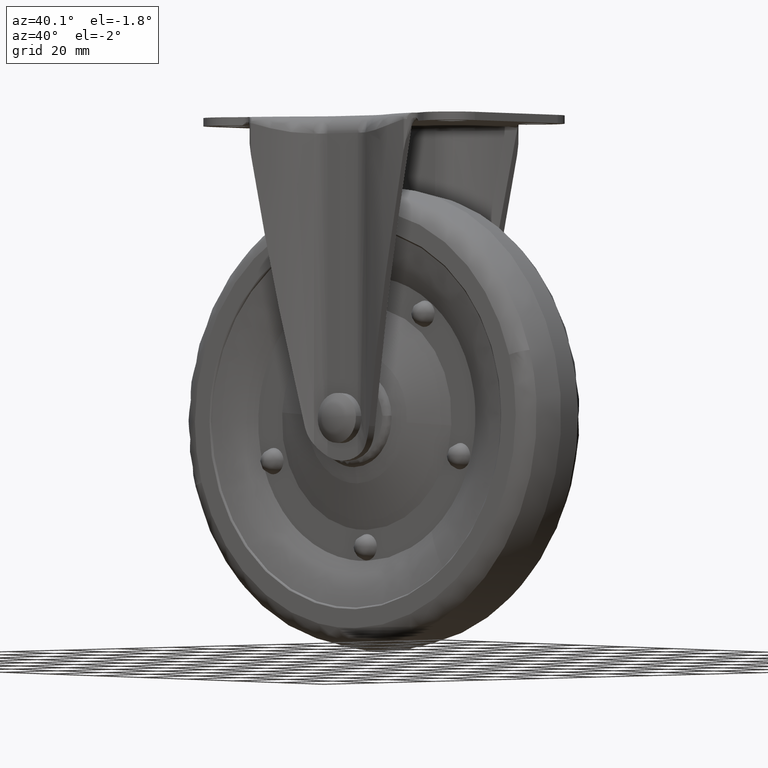
[diagram: clean part render]
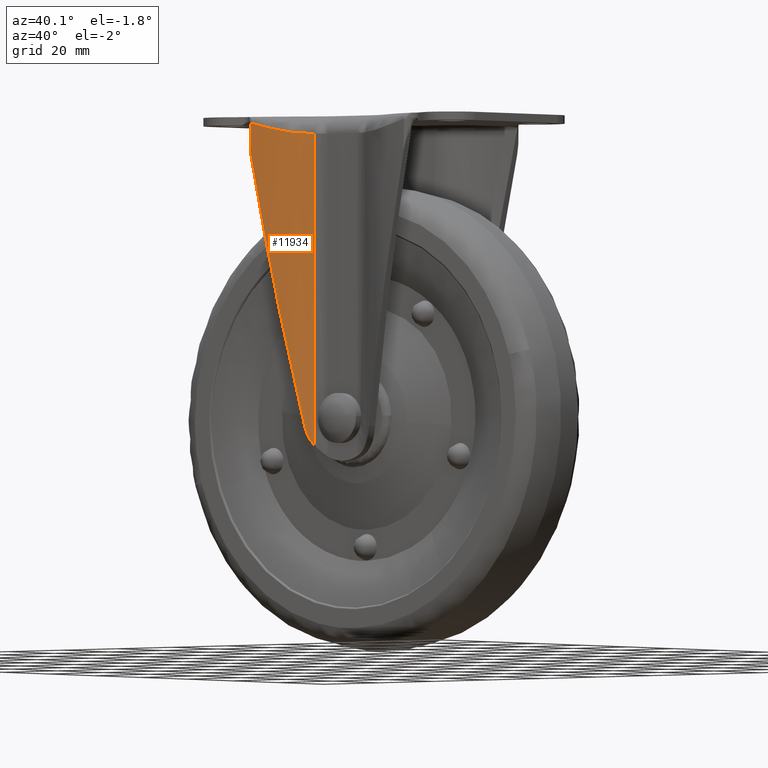
[diagram: same view with one face highlighted and labeled with its STEP entity id]
A machine part, auxiliary view. The second image highlights one B-rep face of the part: STEP entity #11934.
In plain terms, the highlighted face is a freeform B-spline surface patch.
Its self-contained STEP definition (entity closure, byte-faithful):
#10577=CARTESIAN_POINT('',(-27.999450214678951,-24.736656125469999,-1.771033933932410));
#10578=VERTEX_POINT('',#10577);
#10590=CARTESIAN_POINT('',(-27.999450214678951,-24.736656125469999,-10.670306205590780));
#10591=VERTEX_POINT('',#10590);
#10605=CARTESIAN_POINT('',(-27.999450214678951,-24.736656125469999,-1.771033933932410));
#10606=CARTESIAN_POINT('',(-27.999450214678951,-24.736656125469999,-10.670306205590780));
#10607=QUASI_UNIFORM_CURVE('',1,(#10605,#10606),.UNSPECIFIED.,.F.,.U.);
#10608=EDGE_CURVE('',#10578,#10591,#10607,.T.);
#11256=CARTESIAN_POINT('',(-9.524197729783939,-19.208080686845101,-5.0));
#11257=VERTEX_POINT('',#11256);
#11341=CARTESIAN_POINT('',(-9.524197729783939,-19.208080686845101,-5.0));
#11342=CARTESIAN_POINT('',(-9.721285463953905,-19.331011021970891,-4.998767386554441));
#11343=CARTESIAN_POINT('',(-10.119274963873130,-19.579250633673059,-4.996278306192044));
#11344=CARTESIAN_POINT('',(-10.731031096696681,-19.940041906206972,-4.976562624434939));
#11345=CARTESIAN_POINT('',(-11.360897201986511,-20.295906816748811,-4.945227550175589));
#11346=CARTESIAN_POINT('',(-12.009695676551351,-20.644917654763841,-4.901060756505101));
#11347=CARTESIAN_POINT('',(-12.677351338126799,-20.986506508058010,-4.844396815677010));
#11348=CARTESIAN_POINT('',(-13.364003099582289,-21.319701018436518,-4.775143726917881));
#11349=CARTESIAN_POINT('',(-14.069695236447870,-21.643611317848588,-4.693327155719762));
#11350=CARTESIAN_POINT('',(-14.794460056920560,-21.957296432348809,-4.598939786859484));
#11351=CARTESIAN_POINT('',(-15.538293172596219,-22.259802001055011,-4.491985285539370));
#11352=CARTESIAN_POINT('',(-16.301156329938649,-22.550150326605930,-4.372456842156297));
#11353=CARTESIAN_POINT('',(-17.082980311098261,-22.827345926868730,-4.240378936713592));
#11354=CARTESIAN_POINT('',(-17.883638303762801,-23.090368387209459,-4.095658385878757));
#11355=CARTESIAN_POINT('',(-18.771296419279739,-23.358846147992981,-3.925573693732037));
#11356=CARTESIAN_POINT('',(-19.781409418037430,-23.634771080448001,-3.718287109231695));
#11357=CARTESIAN_POINT('',(-20.950597531586752,-23.914470005173008,-3.463955389271223));
#11358=CARTESIAN_POINT('',(-22.246494170215101,-24.176556137892138,-3.169955638447405));
#11359=CARTESIAN_POINT('',(-23.669937936947409,-24.408062274208270,-2.836148743047471));
#11360=CARTESIAN_POINT('',(-25.220906958558899,-24.592633464694980,-2.462402372359446));
#11361=CARTESIAN_POINT('',(-26.678868650620160,-24.704616790617290,-2.103409792956150));
#11362=CARTESIAN_POINT('',(-27.618912595346899,-24.729445097052960,-1.867021104141086));
#11363=CARTESIAN_POINT('',(-27.999450214678951,-24.736656125469999,-1.771033933932410));
#11364=B_SPLINE_CURVE_WITH_KNOTS('',3,(#11341,#11342,#11343,#11344,#11345,#11346,#11347,#11348,#11349,#11350,#11351,#11352,#11353,#11354,#11355,#11356,#11357,#11358,#11359,#11360,#11361,#11362,#11363),.UNSPECIFIED.,.F.,.U.,(4,1,1,1,1,1,1,1,1,1,1,1,1,1,1,1,1,1,1,1,4),(0.0,0.033951579014938,0.068560187220836,0.103836063426484,0.139788876276249,0.176427758421585,0.213761338946602,0.251797774047220,0.290544775986236,0.330009640364105,0.370199271758334,0.411120207793648,0.452778641711366,0.495180443510462,0.548927820384288,0.608787964001157,0.674768910222634,0.746876592849080,0.825115495451964,0.909489067496334,0.966864934376159),.UNSPECIFIED.);
#11365=EDGE_CURVE('',#11257,#10578,#11364,.T.);
#11712=CARTESIAN_POINT('',(-11.739877332031099,-20.498421401754150,-87.485009431393294));
#11713=VERTEX_POINT('',#11712);
#11719=CARTESIAN_POINT('',(-11.739877332031149,-20.498421401754150,-87.485009431393038));
#11720=CARTESIAN_POINT('',(-19.358727554844535,-24.577695580032803,-51.491461322154855));
#11721=CARTESIAN_POINT('',(-27.999450214682000,-24.736656125469999,-10.670306205576340));
#11729=(BOUNDED_CURVE()B_SPLINE_CURVE(2,(#11719,#11720,#11721),.UNSPECIFIED.,.F.,.U.)CURVE()GEOMETRIC_REPRESENTATION_ITEM()QUASI_UNIFORM_CURVE()RATIONAL_B_SPLINE_CURVE((1.0,0.972142328570976,1.0))REPRESENTATION_ITEM(''));
#11730=EDGE_CURVE('',#11713,#10591,#11729,.T.);
#11846=CARTESIAN_POINT('',(-9.524197711336511,-19.208080716065702,-92.299974891219506));
#11847=VERTEX_POINT('',#11846);
#11863=CARTESIAN_POINT('',(-11.739877332031099,-20.498421401754150,-87.485009431393294));
#11864=CARTESIAN_POINT('',(-11.644602426320009,-20.447409444393269,-87.935114342505344));
#11865=CARTESIAN_POINT('',(-11.524929694272689,-20.382809867583951,-88.373165251978506));
#11866=CARTESIAN_POINT('',(-11.240117032884660,-20.226133300475190,-89.226347654144377));
#11867=CARTESIAN_POINT('',(-11.074960389033450,-20.134050471349109,-89.641471622574571));
#11868=CARTESIAN_POINT('',(-10.794321633796720,-19.973835440230761,-90.247104757555107));
#11869=CARTESIAN_POINT('',(-10.695279759262579,-19.916736264339178,-90.446133330903507));
#11870=CARTESIAN_POINT('',(-10.538528985288639,-19.825248080630740,-90.740360306729713));
#11871=CARTESIAN_POINT('',(-10.484849193115931,-19.793739958616332,-90.837827966377930));
#11872=CARTESIAN_POINT('',(-10.375079936667429,-19.728904726635861,-91.030755643079530));
#11873=CARTESIAN_POINT('',(-10.319052227319499,-19.695614525066141,-91.126115631327195));
#11874=CARTESIAN_POINT('',(-10.033336886164969,-19.524747901584291,-91.597466473274210));
#11875=CARTESIAN_POINT('',(-9.786959022899220,-19.373966093799599,-91.957153147814765));
#11876=CARTESIAN_POINT('',(-9.524197729783950,-19.208080686845101,-92.299974867151306));
#11877=B_SPLINE_CURVE_WITH_KNOTS('',3,(#11863,#11864,#11865,#11866,#11867,#11868,#11869,#11870,#11871,#11872,#11873,#11874,#11875,#11876),.UNSPECIFIED.,.F.,.U.,(4,2,2,2,2,2,4),(0.0,0.249999999999997,0.499999999999994,0.624999999999993,0.687499999999992,0.749999999999991,1.0),.UNSPECIFIED.);
#11878=EDGE_CURVE('',#11713,#11847,#11877,.T.);
#11909=CARTESIAN_POINT('',(-8.737358039505558,-18.696810579891160,-94.563198415151689));
#11910=CARTESIAN_POINT('',(-8.737358039505558,-18.696810579891160,0.548770178098081));
#11911=CARTESIAN_POINT('',(-17.918920997322292,-24.835182873618820,-94.563198415151689));
#11912=CARTESIAN_POINT('',(-17.918920997322292,-24.835182873618820,0.548770178098081));
#11913=CARTESIAN_POINT('',(-28.963010950302991,-24.741428539176702,-94.563198415151689));
#11914=CARTESIAN_POINT('',(-28.963010950302991,-24.741428539176702,0.548770178098081));
#11922=(BOUNDED_SURFACE()B_SPLINE_SURFACE(1,2,((#11909,#11911,#11913),(#11910,#11912,#11914)),.UNSPECIFIED.,.F.,.F.,.U.)B_SPLINE_SURFACE_WITH_KNOTS((2,2),(3,3),(0.0,95.111968593249784),(0.0,21.588147255994500),.UNSPECIFIED.)GEOMETRIC_REPRESENTATION_ITEM()RATIONAL_B_SPLINE_SURFACE(((1.0,0.953467935053366,0.995414781058604),(1.0,0.953467935053366,0.995414781058604)))REPRESENTATION_ITEM('')SURFACE());
#11923=ORIENTED_EDGE('',*,*,#11365,.T.);
#11924=ORIENTED_EDGE('',*,*,#10608,.T.);
#11925=ORIENTED_EDGE('',*,*,#11730,.F.);
#11926=ORIENTED_EDGE('',*,*,#11878,.T.);
#11927=CARTESIAN_POINT('',(-9.524197711336511,-19.208080716065702,-92.299974891219506));
#11928=CARTESIAN_POINT('',(-9.524197729783939,-19.208080686845101,-5.0));
#11929=QUASI_UNIFORM_CURVE('',1,(#11927,#11928),.UNSPECIFIED.,.F.,.U.);
#11930=EDGE_CURVE('',#11847,#11257,#11929,.T.);
#11931=ORIENTED_EDGE('',*,*,#11930,.T.);
#11932=EDGE_LOOP('',(#11923,#11924,#11925,#11926,#11931));
#11933=FACE_OUTER_BOUND('',#11932,.T.);
#11934=ADVANCED_FACE('',(#11933),#11922,.T.);